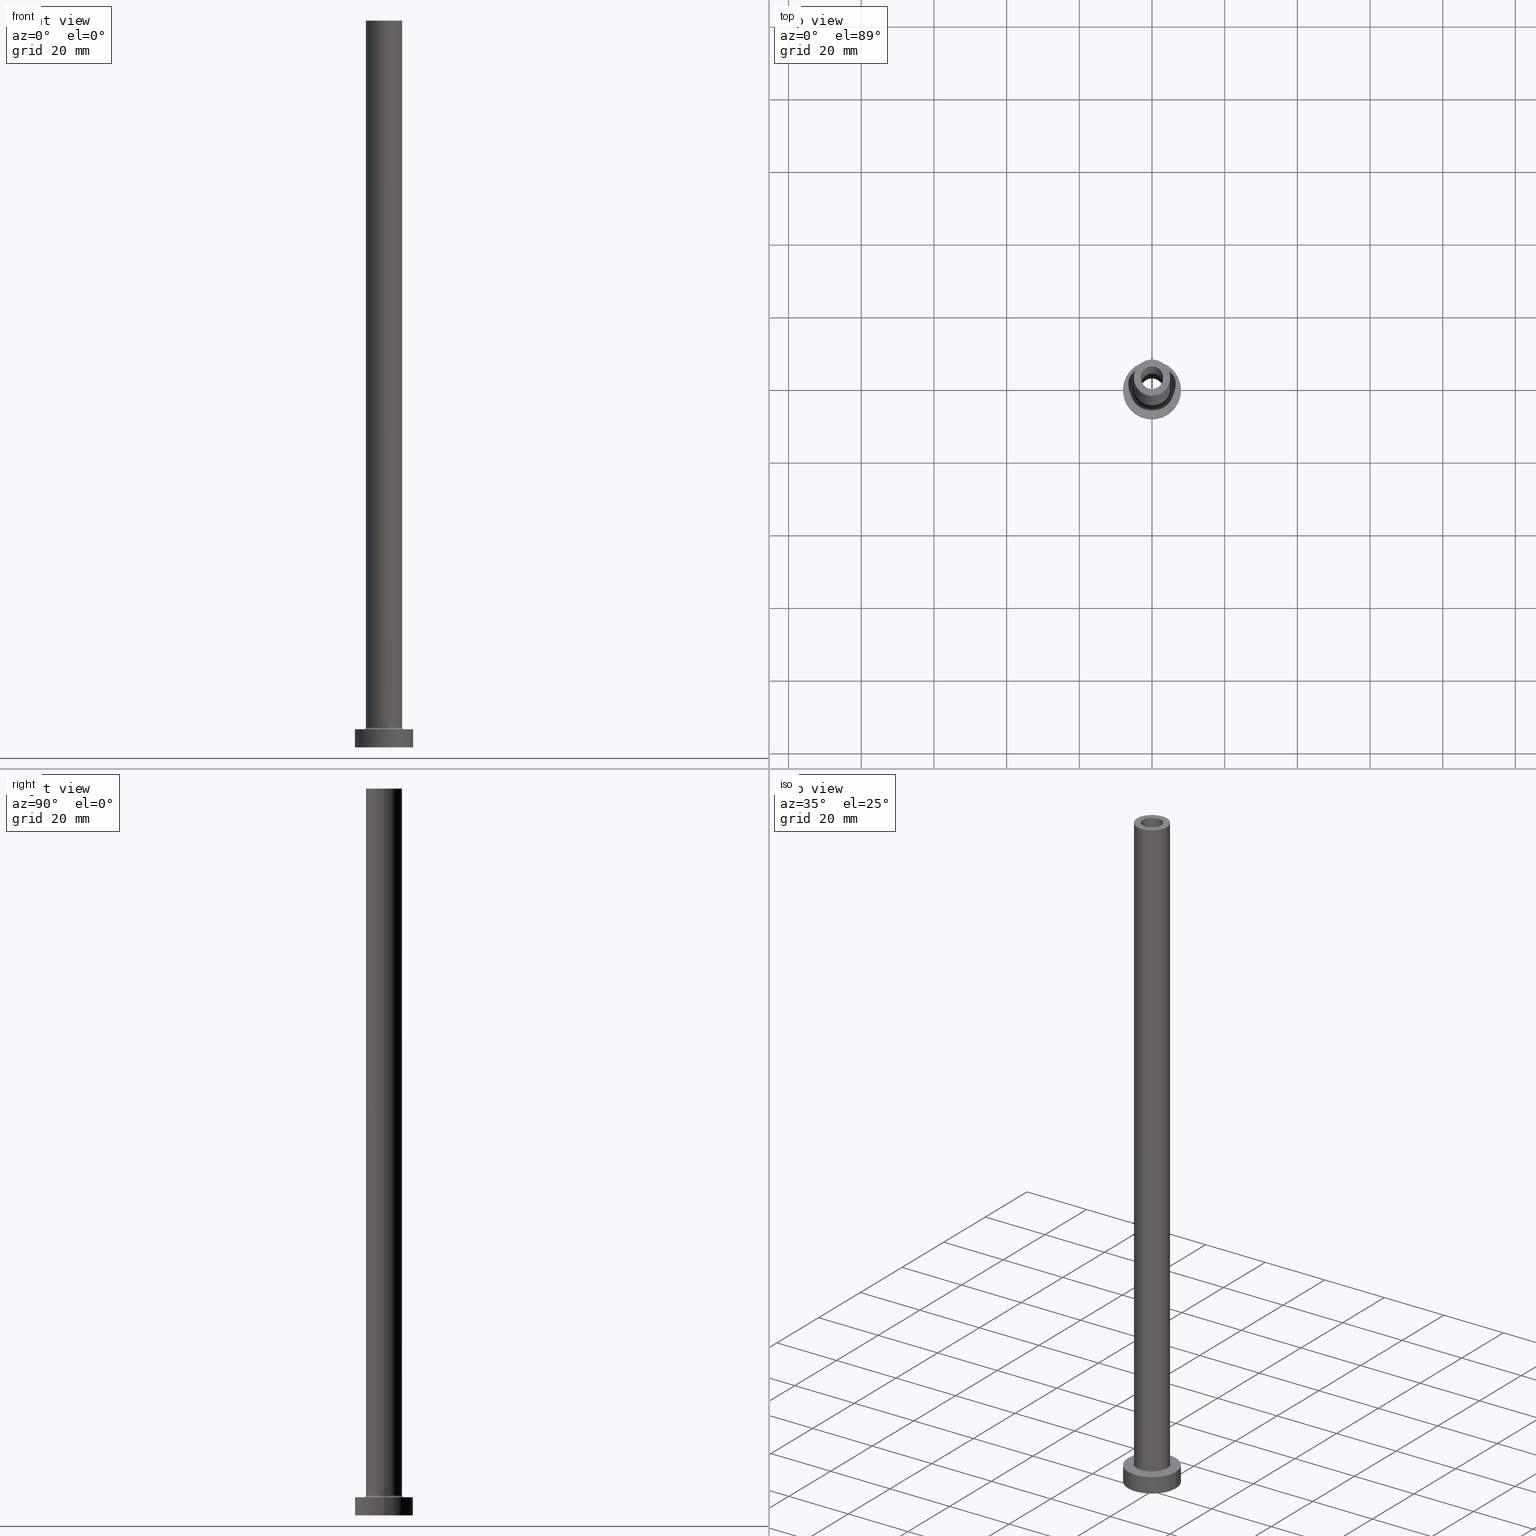
[diagram: canonical four-view strip — front | top / right | iso, engineering-drawing reading convention]
A machine part, canonical four-view strip (front | top / right | iso — engineering-drawing reading convention). The complete STEP part file that produces these views, byte-faithful:
ISO-10303-21;
HEADER;
FILE_DESCRIPTION (( 'STEP AP203' ),
    '1' );
FILE_NAME ('e811.STEP',
    '2023-02-13T09:11:57',
    ( '' ),
    ( '' ),
    'SwSTEP 2.0',
    'SolidWorks 2019',
    '' );
FILE_SCHEMA (( 'CONFIG_CONTROL_DESIGN' ));
ENDSEC;

DATA;
#1 = ORIENTED_EDGE ( 'NONE', *, *, #220, .T. ) ;
#2 = DIRECTION ( 'NONE',  ( 1.000000000000000000, 0.000000000000000000, 0.000000000000000000 ) ) ;
#3 = EDGE_LOOP ( 'NONE', ( #242, #404, #261, #391 ) ) ;
#4 = DIRECTION ( 'NONE',  ( -0.000000000000000000, -0.000000000000000000, -1.000000000000000000 ) ) ;
#5 = ADVANCED_FACE ( 'NONE', ( #263, #415 ), #51, .F. ) ;
#6 = EDGE_LOOP ( 'NONE', ( #119, #329, #144, #199 ) ) ;
#7 = CARTESIAN_POINT ( 'NONE',  ( 3.250000000000000444, 3.980102097228898231E-16, 155.0000000000000284 ) ) ;
#8 = DATE_AND_TIME ( #210, #273 ) ;
#9 = EDGE_LOOP ( 'NONE', ( #290, #429, #296, #249 ) ) ;
#10 = CYLINDRICAL_SURFACE ( 'NONE', #192, 8.000000000000000000 ) ;
#11 = AXIS2_PLACEMENT_3D ( 'NONE', #419, #313, #332 ) ;
#12 = ORIENTED_EDGE ( 'NONE', *, *, #21, .F. ) ;
#13 = ORGANIZATION ( 'NEUR�EN�', 'NEUR�EN�', '' ) ;
#14 = EDGE_CURVE ( 'NONE', #397, #252, #40, .T. ) ;
#15 = CARTESIAN_POINT ( 'NONE',  ( 0.000000000000000000, 0.000000000000000000, 200.0000000000000000 ) ) ;
#16 = CARTESIAN_POINT ( 'NONE',  ( 0.000000000000000000, 0.000000000000000000, 5.000000000000000000 ) ) ;
#17 = DIRECTION ( 'NONE',  ( 0.000000000000000000, 0.000000000000000000, -1.000000000000000000 ) ) ;
#18 = CARTESIAN_POINT ( 'NONE',  ( -8.000000000000000000, 0.000000000000000000, 0.000000000000000000 ) ) ;
#19 = CARTESIAN_POINT ( 'NONE',  ( 3.250000000000000444, 3.980102097228898231E-16, 0.000000000000000000 ) ) ;
#20 = CYLINDRICAL_SURFACE ( 'NONE', #203, 3.250000000000000444 ) ;
#21 = EDGE_CURVE ( 'NONE', #146, #139, #298, .T. ) ;
#22 = DIRECTION ( 'NONE',  ( 0.000000000000000000, 0.000000000000000000, 1.000000000000000000 ) ) ;
#23 = DIRECTION ( 'NONE',  ( 1.000000000000000000, 0.000000000000000000, 0.000000000000000000 ) ) ;
#24 = ORIENTED_EDGE ( 'NONE', *, *, #372, .T. ) ;
#25 =( NAMED_UNIT ( * ) PLANE_ANGLE_UNIT ( ) SI_UNIT ( $, .RADIAN. ) );
#26 = LINE ( 'NONE', #163, #302 ) ;
#27 = COORDINATED_UNIVERSAL_TIME_OFFSET ( 1, 0, .AHEAD. ) ;
#28 = EDGE_CURVE ( 'NONE', #252, #397, #157, .T. ) ;
#29 = CLOSED_SHELL ( 'NONE', ( #170, #336, #408, #456, #186, #260, #105, #424, #393, #39, #200, #357, #5, #179 ) ) ;
#30 = CC_DESIGN_APPROVAL ( #138, ( #352 ) ) ;
#31 = APPLICATION_PROTOCOL_DEFINITION ( 'international standard', 'config_control_design', 1994, #229 ) ;
#32 = CIRCLE ( 'NONE', #176, 8.000000000000000000 ) ;
#33 = AXIS2_PLACEMENT_3D ( 'NONE', #307, #345, #56 ) ;
#34 = ORIENTED_EDGE ( 'NONE', *, *, #28, .F. ) ;
#35 = ORIENTED_EDGE ( 'NONE', *, *, #421, .T. ) ;
#36 = DIRECTION ( 'NONE',  ( -0.000000000000000000, -0.000000000000000000, -1.000000000000000000 ) ) ;
#37 = ORIENTED_EDGE ( 'NONE', *, *, #57, .T. ) ;
#38 = DIRECTION ( 'NONE',  ( 0.000000000000000000, 0.000000000000000000, 1.000000000000000000 ) ) ;
#39 = ADVANCED_FACE ( 'NONE', ( #308, #381 ), #90, .T. ) ;
#40 = CIRCLE ( 'NONE', #123, 5.000000000000000000 ) ;
#41 = LOCAL_TIME ( 10, 11, 57.00000000000000000, #27 ) ;
#42 = EDGE_LOOP ( 'NONE', ( #399, #76, #254, #351 ) ) ;
#43 = CARTESIAN_POINT ( 'NONE',  ( 0.000000000000000000, 0.000000000000000000, 0.000000000000000000 ) ) ;
#44 = ORIENTED_EDGE ( 'NONE', *, *, #21, .T. ) ;
#45 = DIRECTION ( 'NONE',  ( 1.000000000000000000, 0.000000000000000000, 0.000000000000000000 ) ) ;
#46 = COORDINATED_UNIVERSAL_TIME_OFFSET ( 1, 0, .AHEAD. ) ;
#47 = EDGE_CURVE ( 'NONE', #427, #112, #107, .T. ) ;
#48 = ORIENTED_EDGE ( 'NONE', *, *, #94, .F. ) ;
#49 = DIRECTION ( 'NONE',  ( -1.000000000000000000, 0.000000000000000000, 0.000000000000000000 ) ) ;
#50 = AXIS2_PLACEMENT_3D ( 'NONE', #231, #162, #270 ) ;
#51 = PLANE ( 'NONE',  #137 ) ;
#52 = LOCAL_TIME ( 10, 11, 57.00000000000000000, #282 ) ;
#53 = CARTESIAN_POINT ( 'NONE',  ( 0.000000000000000000, 0.000000000000000000, 5.000000000000000000 ) ) ;
#54 = DIRECTION ( 'NONE',  ( -1.000000000000000000, 0.000000000000000000, 0.000000000000000000 ) ) ;
#55 = VERTEX_POINT ( 'NONE', #447 ) ;
#56 = DIRECTION ( 'NONE',  ( 1.000000000000000000, 0.000000000000000000, 0.000000000000000000 ) ) ;
#57 = EDGE_CURVE ( 'NONE', #112, #216, #212, .T. ) ;
#58 = DIRECTION ( 'NONE',  ( -0.000000000000000000, -0.000000000000000000, -1.000000000000000000 ) ) ;
#59 = CIRCLE ( 'NONE', #445, 3.250000000000000444 ) ;
#60 = CARTESIAN_POINT ( 'NONE',  ( 3.100000000000000089, 3.796405077356793932E-16, 200.0000000000000000 ) ) ;
#61 = CC_DESIGN_APPROVAL ( #147, ( #340 ) ) ;
#62 = DIRECTION ( 'NONE',  ( 0.000000000000000000, -1.000000000000000000, 0.000000000000000000 ) ) ;
#63 = DIRECTION ( 'NONE',  ( 0.000000000000000000, 0.000000000000000000, 1.000000000000000000 ) ) ;
#64 = EDGE_CURVE ( 'NONE', #146, #278, #387, .T. ) ;
#65 = CARTESIAN_POINT ( 'NONE',  ( -3.250000000000000444, 0.000000000000000000, 0.000000000000000000 ) ) ;
#66 = APPROVAL_STATUS ( 'not_yet_approved' ) ;
#67 = PRODUCT_DEFINITION_SHAPE ( 'NONE', 'NONE',  #352 ) ;
#68 = EDGE_LOOP ( 'NONE', ( #37, #78 ) ) ;
#69 = AXIS2_PLACEMENT_3D ( 'NONE', #209, #172, #321 ) ;
#70 = PRODUCT ( 'e811', 'e811', '', ( #244 ) ) ;
#71 = VECTOR ( 'NONE', #344, 1000.000000000000000 ) ;
#72 = EDGE_LOOP ( 'NONE', ( #182, #438 ) ) ;
#73 = DIRECTION ( 'NONE',  ( -1.000000000000000000, 0.000000000000000000, 0.000000000000000000 ) ) ;
#74 = EDGE_CURVE ( 'NONE', #386, #367, #175, .T. ) ;
#75 = APPROVAL_DATE_TIME ( #314, #403 ) ;
#76 = ORIENTED_EDGE ( 'NONE', *, *, #440, .F. ) ;
#77 = CYLINDRICAL_SURFACE ( 'NONE', #355, 8.000000000000000000 ) ;
#78 = ORIENTED_EDGE ( 'NONE', *, *, #211, .T. ) ;
#79 = FACE_OUTER_BOUND ( 'NONE', #3, .T. ) ;
#80 = VECTOR ( 'NONE', #58, 1000.000000000000000 ) ;
#81 =( GEOMETRIC_REPRESENTATION_CONTEXT ( 3 ) GLOBAL_UNCERTAINTY_ASSIGNED_CONTEXT ( ( #316 ) ) GLOBAL_UNIT_ASSIGNED_CONTEXT ( ( #271, #25, #262 ) ) REPRESENTATION_CONTEXT ( 'NONE', 'WORKASPACE' ) );
#82 = EDGE_LOOP ( 'NONE', ( #85, #358 ) ) ;
#83 = CARTESIAN_POINT ( 'NONE',  ( 0.000000000000000000, 0.000000000000000000, 5.000000000000000000 ) ) ;
#84 = PERSON_AND_ORGANIZATION ( #134, #13 ) ;
#85 = ORIENTED_EDGE ( 'NONE', *, *, #64, .F. ) ;
#86 = CARTESIAN_POINT ( 'NONE',  ( 0.000000000000000000, 0.000000000000000000, 164.1923881554251352 ) ) ;
#87 = FACE_OUTER_BOUND ( 'NONE', #315, .T. ) ;
#88 = CC_DESIGN_PERSON_AND_ORGANIZATION_ASSIGNMENT ( #243, #390, ( #91 ) ) ;
#89 = AXIS2_PLACEMENT_3D ( 'NONE', #341, #22, #455 ) ;
#90 = PLANE ( 'NONE',  #312 ) ;
#91 = PRODUCT_DEFINITION_FORMATION_WITH_SPECIFIED_SOURCE ( 'LIBOVOLN�', '', #70, .NOT_KNOWN. ) ;
#92 = CARTESIAN_POINT ( 'NONE',  ( 8.000000000000000000, 9.797174393178825657E-16, 5.000000000000000000 ) ) ;
#93 = DIRECTION ( 'NONE',  ( 0.000000000000000000, 0.000000000000000000, 1.000000000000000000 ) ) ;
#94 = EDGE_CURVE ( 'NONE', #278, #121, #131, .T. ) ;
#95 = CYLINDRICAL_SURFACE ( 'NONE', #214, 5.000000000000000000 ) ;
#96 = LINE ( 'NONE', #193, #402 ) ;
#97 = CARTESIAN_POINT ( 'NONE',  ( 5.500000000000000000, 0.000000000000000000, 5.500000000000005329 ) ) ;
#98 = AXIS2_PLACEMENT_3D ( 'NONE', #15, #208, #73 ) ;
#99 = VECTOR ( 'NONE', #368, 1000.000000000000000 ) ;
#100 = EDGE_CURVE ( 'NONE', #386, #371, #96, .T. ) ;
#101 = CARTESIAN_POINT ( 'NONE',  ( 8.000000000000000000, 9.797174393178825657E-16, 5.000000000000000000 ) ) ;
#102 = EDGE_LOOP ( 'NONE', ( #283, #356, #173, #12 ) ) ;
#103 = PERSON_AND_ORGANIZATION_ROLE ( 'design_owner' ) ;
#104 = AXIS2_PLACEMENT_3D ( 'NONE', #377, #156, #450 ) ;
#105 = ADVANCED_FACE ( 'NONE', ( #376, #87 ), #221, .T. ) ;
#106 = COORDINATED_UNIVERSAL_TIME_OFFSET ( 1, 0, .AHEAD. ) ;
#107 = CIRCLE ( 'NONE', #239, 0.5000000000000004441 ) ;
#108 = AXIS2_PLACEMENT_3D ( 'NONE', #183, #222, #23 ) ;
#109 = EDGE_CURVE ( 'NONE', #306, #371, #224, .T. ) ;
#110 = ORIENTED_EDGE ( 'NONE', *, *, #293, .T. ) ;
#111 = FACE_OUTER_BOUND ( 'NONE', #42, .T. ) ;
#112 = VERTEX_POINT ( 'NONE', #412 ) ;
#113 = FACE_OUTER_BOUND ( 'NONE', #292, .T. ) ;
#114 = ORIENTED_EDGE ( 'NONE', *, *, #421, .F. ) ;
#115 = DIRECTION ( 'NONE',  ( 0.000000000000000000, 0.000000000000000000, -1.000000000000000000 ) ) ;
#116 = TOROIDAL_SURFACE ( 'NONE', #225, 5.500000000000000000, 0.5000000000000000000 ) ;
#117 = ORIENTED_EDGE ( 'NONE', *, *, #74, .F. ) ;
#118 = FACE_OUTER_BOUND ( 'NONE', #102, .T. ) ;
#119 = ORIENTED_EDGE ( 'NONE', *, *, #14, .F. ) ;
#120 = DATE_AND_TIME ( #213, #317 ) ;
#121 = VERTEX_POINT ( 'NONE', #19 ) ;
#122 = EDGE_CURVE ( 'NONE', #55, #360, #304, .T. ) ;
#123 = AXIS2_PLACEMENT_3D ( 'NONE', #128, #406, #409 ) ;
#124 = DIRECTION ( 'NONE',  ( 1.000000000000000000, 0.000000000000000000, 0.000000000000000000 ) ) ;
#125 = CARTESIAN_POINT ( 'NONE',  ( 0.000000000000000000, 0.000000000000000000, 5.000000000000000000 ) ) ;
#126 = DIRECTION ( 'NONE',  ( 1.000000000000000000, 0.000000000000000000, 0.000000000000000000 ) ) ;
#127 = CARTESIAN_POINT ( 'NONE',  ( 0.000000000000000000, 0.000000000000000000, 200.0000000000000000 ) ) ;
#128 = CARTESIAN_POINT ( 'NONE',  ( 0.000000000000000000, 0.000000000000000000, 200.0000000000000000 ) ) ;
#129 = DIRECTION ( 'NONE',  ( -0.000000000000000000, -0.000000000000000000, -1.000000000000000000 ) ) ;
#130 = EDGE_CURVE ( 'NONE', #360, #142, #284, .T. ) ;
#131 = LINE ( 'NONE', #153, #71 ) ;
#132 = AXIS2_PLACEMENT_3D ( 'NONE', #217, #365, #45 ) ;
#133 = APPROVAL_DATE_TIME ( #423, #138 ) ;
#134 = PERSON ( 'NEUR�EN�', 'NEUR�EN�', 'NEUR�EN�', ('NEUR�EN�'), ('NEUR�EN�'), ('NEUR�EN�') ) ;
#135 = ORIENTED_EDGE ( 'NONE', *, *, #166, .T. ) ;
#136 = EDGE_CURVE ( 'NONE', #397, #427, #26, .T. ) ;
#137 = AXIS2_PLACEMENT_3D ( 'NONE', #449, #234, #374 ) ;
#138 = APPROVAL ( #353, 'NEUR�EN�' ) ;
#139 = VERTEX_POINT ( 'NONE', #65 ) ;
#140 = DIRECTION ( 'NONE',  ( 0.000000000000000000, 0.000000000000000000, 1.000000000000000000 ) ) ;
#141 = CIRCLE ( 'NONE', #454, 3.100000000000000089 ) ;
#142 = VERTEX_POINT ( 'NONE', #197 ) ;
#143 = DIRECTION ( 'NONE',  ( -0.000000000000000000, -0.000000000000000000, -1.000000000000000000 ) ) ;
#144 = ORIENTED_EDGE ( 'NONE', *, *, #237, .T. ) ;
#145 = CARTESIAN_POINT ( 'NONE',  ( -5.000000000000000000, 0.000000000000000000, 200.0000000000000000 ) ) ;
#146 = VERTEX_POINT ( 'NONE', #383 ) ;
#147 = APPROVAL ( #411, 'NEUR�EN�' ) ;
#148 = DIRECTION ( 'NONE',  ( 1.000000000000000000, 0.000000000000000000, 0.000000000000000000 ) ) ;
#149 = APPROVAL_PERSON_ORGANIZATION ( #392, #403, #198 ) ;
#150 = PERSON_AND_ORGANIZATION_ROLE ( 'creator' ) ;
#151 = ORIENTED_EDGE ( 'NONE', *, *, #109, .T. ) ;
#152 = FACE_OUTER_BOUND ( 'NONE', #461, .T. ) ;
#153 = CARTESIAN_POINT ( 'NONE',  ( 3.250000000000000444, 3.980102097228898231E-16, 164.1923881554251352 ) ) ;
#154 = EDGE_CURVE ( 'NONE', #369, #142, #274, .T. ) ;
#155 = DIRECTION ( 'NONE',  ( 1.000000000000000000, 0.000000000000000000, -0.000000000000000000 ) ) ;
#156 = DIRECTION ( 'NONE',  ( 0.000000000000000000, 0.000000000000000000, 1.000000000000000000 ) ) ;
#157 = CIRCLE ( 'NONE', #50, 5.000000000000000000 ) ;
#158 = DIRECTION ( 'NONE',  ( 1.000000000000000000, 0.000000000000000000, 0.000000000000000000 ) ) ;
#159 = CARTESIAN_POINT ( 'NONE',  ( 5.000000000000000000, 6.123233995736766282E-16, 5.500000000000005329 ) ) ;
#160 = DIRECTION ( 'NONE',  ( 0.000000000000000000, 0.000000000000000000, -1.000000000000000000 ) ) ;
#161 = DIRECTION ( 'NONE',  ( -1.000000000000000000, 0.000000000000000000, 0.000000000000000000 ) ) ;
#162 = DIRECTION ( 'NONE',  ( 0.000000000000000000, 0.000000000000000000, 1.000000000000000000 ) ) ;
#163 = CARTESIAN_POINT ( 'NONE',  ( 5.000000000000000000, 6.123233995736766282E-16, 200.0000000000000000 ) ) ;
#164 = CIRCLE ( 'NONE', #108, 3.250000000000000444 ) ;
#165 = CALENDAR_DATE ( 2023, 13, 2 ) ;
#166 = EDGE_CURVE ( 'NONE', #246, #216, #325, .T. ) ;
#167 = PERSON_AND_ORGANIZATION ( #134, #13 ) ;
#168 = AXIS2_PLACEMENT_3D ( 'NONE', #53, #187, #300 ) ;
#169 = AXIS2_PLACEMENT_3D ( 'NONE', #264, #275, #420 ) ;
#170 = ADVANCED_FACE ( 'NONE', ( #79 ), #286, .F. ) ;
#171 = ORIENTED_EDGE ( 'NONE', *, *, #154, .T. ) ;
#172 = DIRECTION ( 'NONE',  ( 0.000000000000000000, 0.000000000000000000, 1.000000000000000000 ) ) ;
#173 = ORIENTED_EDGE ( 'NONE', *, *, #201, .T. ) ;
#174 = CARTESIAN_POINT ( 'NONE',  ( -5.500000000000000000, 6.735557395310442023E-16, 5.000000000000002665 ) ) ;
#175 = CIRCLE ( 'NONE', #426, 3.100000000000000089 ) ;
#176 = AXIS2_PLACEMENT_3D ( 'NONE', #437, #38, #326 ) ;
#177 = ORIENTED_EDGE ( 'NONE', *, *, #310, .T. ) ;
#178 = LINE ( 'NONE', #259, #452 ) ;
#179 = ADVANCED_FACE ( 'NONE', ( #113 ), #206, .F. ) ;
#180 = ORIENTED_EDGE ( 'NONE', *, *, #122, .F. ) ;
#181 = CARTESIAN_POINT ( 'NONE',  ( 0.000000000000000000, 0.000000000000000000, 200.0000000000000000 ) ) ;
#182 = ORIENTED_EDGE ( 'NONE', *, *, #130, .F. ) ;
#183 = CARTESIAN_POINT ( 'NONE',  ( 0.000000000000000000, 0.000000000000000000, 0.000000000000000000 ) ) ;
#184 = AXIS2_PLACEMENT_3D ( 'NONE', #83, #143, #2 ) ;
#185 = CARTESIAN_POINT ( 'NONE',  ( 0.000000000000000000, 0.000000000000000000, 200.0000000000000000 ) ) ;
#186 = ADVANCED_FACE ( 'NONE', ( #152 ), #10, .T. ) ;
#187 = DIRECTION ( 'NONE',  ( 0.000000000000000000, 0.000000000000000000, 1.000000000000000000 ) ) ;
#188 = CARTESIAN_POINT ( 'NONE',  ( 5.000000000000000000, 6.123233995736766282E-16, 200.0000000000000000 ) ) ;
#189 = DIRECTION ( 'NONE',  ( 0.000000000000000000, 0.000000000000000000, 1.000000000000000000 ) ) ;
#190 = FACE_BOUND ( 'NONE', #435, .T. ) ;
#191 = AXIS2_PLACEMENT_3D ( 'NONE', #248, #328, #430 ) ;
#192 = AXIS2_PLACEMENT_3D ( 'NONE', #359, #36, #361 ) ;
#193 = CARTESIAN_POINT ( 'NONE',  ( 3.100000000000000089, 3.796405077356793932E-16, 200.0000000000000000 ) ) ;
#194 = MANIFOLD_SOLID_BREP ( 'Odebrat vysunut�m4', #29 ) ;
#195 = CYLINDRICAL_SURFACE ( 'NONE', #379, 5.000000000000000000 ) ;
#196 = CARTESIAN_POINT ( 'NONE',  ( 0.000000000000000000, 0.000000000000000000, 200.0000000000000000 ) ) ;
#197 = CARTESIAN_POINT ( 'NONE',  ( 8.000000000000000000, 9.797174393178825657E-16, 0.000000000000000000 ) ) ;
#198 = APPROVAL_ROLE ( '' ) ;
#199 = ORIENTED_EDGE ( 'NONE', *, *, #293, .F. ) ;
#200 = ADVANCED_FACE ( 'NONE', ( #439 ), #416, .F. ) ;
#201 = EDGE_CURVE ( 'NONE', #121, #139, #59, .T. ) ;
#202 = ORIENTED_EDGE ( 'NONE', *, *, #14, .T. ) ;
#203 = AXIS2_PLACEMENT_3D ( 'NONE', #410, #413, #161 ) ;
#204 = CC_DESIGN_DATE_AND_TIME_ASSIGNMENT ( #8, #401, ( #340 ) ) ;
#205 = ORIENTED_EDGE ( 'NONE', *, *, #251, .F. ) ;
#206 = CYLINDRICAL_SURFACE ( 'NONE', #378, 3.100000000000000089 ) ;
#207 = ORIENTED_EDGE ( 'NONE', *, *, #57, .F. ) ;
#208 = DIRECTION ( 'NONE',  ( 0.000000000000000000, 0.000000000000000000, -1.000000000000000000 ) ) ;
#209 = CARTESIAN_POINT ( 'NONE',  ( 0.000000000000000000, 0.000000000000000000, 5.500000000000005329 ) ) ;
#210 = CALENDAR_DATE ( 2023, 13, 2 ) ;
#211 = EDGE_CURVE ( 'NONE', #216, #112, #394, .T. ) ;
#212 = CIRCLE ( 'NONE', #459, 5.500000000000000000 ) ;
#213 = CALENDAR_DATE ( 2023, 13, 2 ) ;
#214 = AXIS2_PLACEMENT_3D ( 'NONE', #230, #299, #54 ) ;
#215 = PERSON_AND_ORGANIZATION ( #134, #13 ) ;
#216 = VERTEX_POINT ( 'NONE', #174 ) ;
#217 = CARTESIAN_POINT ( 'NONE',  ( 0.000000000000000000, 0.000000000000000000, 0.000000000000000000 ) ) ;
#218 = ORIENTED_EDGE ( 'NONE', *, *, #201, .F. ) ;
#219 = DIRECTION ( 'NONE',  ( 0.000000000000000000, 0.000000000000000000, -1.000000000000000000 ) ) ;
#220 = EDGE_CURVE ( 'NONE', #367, #306, #178, .T. ) ;
#221 = PLANE ( 'NONE',  #168 ) ;
#222 = DIRECTION ( 'NONE',  ( -0.000000000000000000, -0.000000000000000000, -1.000000000000000000 ) ) ;
#223 = SHAPE_DEFINITION_REPRESENTATION ( #67, #323 ) ;
#224 = CIRCLE ( 'NONE', #265, 3.100000000000000089 ) ;
#225 = AXIS2_PLACEMENT_3D ( 'NONE', #338, #382, #301 ) ;
#226 = DIRECTION ( 'NONE',  ( 0.000000000000000000, 0.000000000000000000, 1.000000000000000000 ) ) ;
#227 = FACE_OUTER_BOUND ( 'NONE', #333, .T. ) ;
#228 = DIRECTION ( 'NONE',  ( 0.000000000000000000, 0.000000000000000000, -1.000000000000000000 ) ) ;
#229 = APPLICATION_CONTEXT ( 'configuration controlled 3d designs of mechanical parts and assemblies' ) ;
#230 = CARTESIAN_POINT ( 'NONE',  ( 0.000000000000000000, 0.000000000000000000, 200.0000000000000000 ) ) ;
#231 = CARTESIAN_POINT ( 'NONE',  ( 0.000000000000000000, 0.000000000000000000, 200.0000000000000000 ) ) ;
#232 = PLANE ( 'NONE',  #104 ) ;
#233 = CIRCLE ( 'NONE', #33, 5.000000000000000000 ) ;
#234 = DIRECTION ( 'NONE',  ( 0.000000000000000000, 0.000000000000000000, 1.000000000000000000 ) ) ;
#235 = DIRECTION ( 'NONE',  ( 1.000000000000000000, 0.000000000000000000, 0.000000000000000000 ) ) ;
#236 = DIRECTION ( 'NONE',  ( -0.000000000000000000, -0.000000000000000000, -1.000000000000000000 ) ) ;
#237 = EDGE_CURVE ( 'NONE', #427, #246, #279, .T. ) ;
#238 = ORIENTED_EDGE ( 'NONE', *, *, #47, .F. ) ;
#239 = AXIS2_PLACEMENT_3D ( 'NONE', #97, #62, #228 ) ;
#240 = CIRCLE ( 'NONE', #280, 3.250000000000000444 ) ;
#241 = CALENDAR_DATE ( 2023, 13, 2 ) ;
#242 = ORIENTED_EDGE ( 'NONE', *, *, #251, .T. ) ;
#243 = PERSON_AND_ORGANIZATION ( #134, #13 ) ;
#244 = MECHANICAL_CONTEXT ( 'NONE', #256, 'mechanical' ) ;
#245 = DATE_AND_TIME ( #347, #257 ) ;
#246 = VERTEX_POINT ( 'NONE', #330 ) ;
#247 = AXIS2_PLACEMENT_3D ( 'NONE', #125, #63, #305 ) ;
#248 = CARTESIAN_POINT ( 'NONE',  ( 0.000000000000000000, 0.000000000000000000, 5.500000000000005329 ) ) ;
#249 = ORIENTED_EDGE ( 'NONE', *, *, #211, .F. ) ;
#250 = DIRECTION ( 'NONE',  ( -0.000000000000000000, -0.000000000000000000, -1.000000000000000000 ) ) ;
#251 = EDGE_CURVE ( 'NONE', #367, #386, #434, .T. ) ;
#252 = VERTEX_POINT ( 'NONE', #253 ) ;
#253 = CARTESIAN_POINT ( 'NONE',  ( -5.000000000000000000, 0.000000000000000000, 200.0000000000000000 ) ) ;
#254 = ORIENTED_EDGE ( 'NONE', *, *, #122, .T. ) ;
#255 = CARTESIAN_POINT ( 'NONE',  ( -3.100000000000000089, 0.000000000000000000, 155.0000000000000284 ) ) ;
#256 = APPLICATION_CONTEXT ( 'configuration controlled 3d designs of mechanical parts and assemblies' ) ;
#257 = LOCAL_TIME ( 10, 11, 57.00000000000000000, #106 ) ;
#258 = ORIENTED_EDGE ( 'NONE', *, *, #28, .T. ) ;
#259 = CARTESIAN_POINT ( 'NONE',  ( -3.100000000000000089, 0.000000000000000000, 200.0000000000000000 ) ) ;
#260 = ADVANCED_FACE ( 'NONE', ( #111 ), #77, .T. ) ;
#261 = ORIENTED_EDGE ( 'NONE', *, *, #109, .F. ) ;
#262 =( NAMED_UNIT ( * ) SI_UNIT ( $, .STERADIAN. ) SOLID_ANGLE_UNIT ( ) );
#263 = FACE_BOUND ( 'NONE', #354, .T. ) ;
#264 = CARTESIAN_POINT ( 'NONE',  ( 0.000000000000000000, 0.000000000000000000, 0.000000000000000000 ) ) ;
#265 = AXIS2_PLACEMENT_3D ( 'NONE', #414, #444, #124 ) ;
#266 = ORIENTED_EDGE ( 'NONE', *, *, #100, .F. ) ;
#267 = CARTESIAN_POINT ( 'NONE',  ( -8.000000000000000000, 0.000000000000000000, 5.000000000000000000 ) ) ;
#268 = CC_DESIGN_DATE_AND_TIME_ASSIGNMENT ( #245, #385, ( #352 ) ) ;
#269 = DIRECTION ( 'NONE',  ( -1.000000000000000000, 0.000000000000000000, 0.000000000000000000 ) ) ;
#270 = DIRECTION ( 'NONE',  ( 1.000000000000000000, 0.000000000000000000, 0.000000000000000000 ) ) ;
#271 =( LENGTH_UNIT ( ) NAMED_UNIT ( * ) SI_UNIT ( .MILLI., .METRE. ) );
#272 = VECTOR ( 'NONE', #346, 1000.000000000000000 ) ;
#273 = LOCAL_TIME ( 10, 11, 57.00000000000000000, #349 ) ;
#274 = LINE ( 'NONE', #101, #272 ) ;
#275 = DIRECTION ( 'NONE',  ( 0.000000000000000000, 0.000000000000000000, 1.000000000000000000 ) ) ;
#276 = EDGE_CURVE ( 'NONE', #369, #55, #32, .T. ) ;
#277 = PERSON_AND_ORGANIZATION ( #134, #13 ) ;
#278 = VERTEX_POINT ( 'NONE', #7 ) ;
#279 = CIRCLE ( 'NONE', #191, 5.000000000000000000 ) ;
#280 = AXIS2_PLACEMENT_3D ( 'NONE', #309, #446, #235 ) ;
#281 = APPROVAL_ROLE ( '' ) ;
#282 = COORDINATED_UNIVERSAL_TIME_OFFSET ( 1, 0, .AHEAD. ) ;
#283 = ORIENTED_EDGE ( 'NONE', *, *, #64, .T. ) ;
#284 = CIRCLE ( 'NONE', #89, 8.000000000000000000 ) ;
#285 = CC_DESIGN_APPROVAL ( #403, ( #91 ) ) ;
#286 = CYLINDRICAL_SURFACE ( 'NONE', #98, 3.100000000000000089 ) ;
#287 = EDGE_CURVE ( 'NONE', #371, #306, #141, .T. ) ;
#288 = EDGE_LOOP ( 'NONE', ( #205, #117 ) ) ;
#289 = CARTESIAN_POINT ( 'NONE',  ( 0.000000000000000000, 0.000000000000000000, 155.0000000000000284 ) ) ;
#290 = ORIENTED_EDGE ( 'NONE', *, *, #166, .F. ) ;
#291 = DIRECTION ( 'NONE',  ( 1.000000000000000000, 0.000000000000000000, 0.000000000000000000 ) ) ;
#292 = EDGE_LOOP ( 'NONE', ( #266, #395, #1, #432 ) ) ;
#293 = EDGE_CURVE ( 'NONE', #252, #246, #433, .T. ) ;
#294 = CARTESIAN_POINT ( 'NONE',  ( 0.000000000000000000, 0.000000000000000000, 200.0000000000000000 ) ) ;
#295 = CIRCLE ( 'NONE', #132, 8.000000000000000000 ) ;
#296 = ORIENTED_EDGE ( 'NONE', *, *, #47, .T. ) ;
#297 = DIRECTION ( 'NONE',  ( 0.000000000000000000, 0.000000000000000000, -1.000000000000000000 ) ) ;
#298 = LINE ( 'NONE', #442, #339 ) ;
#299 = DIRECTION ( 'NONE',  ( -0.000000000000000000, -0.000000000000000000, -1.000000000000000000 ) ) ;
#300 = DIRECTION ( 'NONE',  ( 1.000000000000000000, 0.000000000000000000, -0.000000000000000000 ) ) ;
#301 = DIRECTION ( 'NONE',  ( 1.000000000000000000, 0.000000000000000000, 0.000000000000000000 ) ) ;
#302 = VECTOR ( 'NONE', #236, 1000.000000000000000 ) ;
#303 = APPROVAL_PERSON_ORGANIZATION ( #167, #138, #281 ) ;
#304 = LINE ( 'NONE', #267, #80 ) ;
#305 = DIRECTION ( 'NONE',  ( 1.000000000000000000, 0.000000000000000000, 0.000000000000000000 ) ) ;
#306 = VERTEX_POINT ( 'NONE', #255 ) ;
#307 = CARTESIAN_POINT ( 'NONE',  ( 0.000000000000000000, 0.000000000000000000, 5.500000000000005329 ) ) ;
#308 = FACE_BOUND ( 'NONE', #288, .T. ) ;
#309 = CARTESIAN_POINT ( 'NONE',  ( 0.000000000000000000, 0.000000000000000000, 155.0000000000000284 ) ) ;
#310 = EDGE_CURVE ( 'NONE', #142, #360, #295, .T. ) ;
#311 = PERSON_AND_ORGANIZATION ( #134, #13 ) ;
#312 = AXIS2_PLACEMENT_3D ( 'NONE', #185, #189, #155 ) ;
#313 = DIRECTION ( 'NONE',  ( 1.224646799147353207E-16, 1.000000000000000000, -0.000000000000000000 ) ) ;
#314 = DATE_AND_TIME ( #165, #41 ) ;
#315 = EDGE_LOOP ( 'NONE', ( #389, #425 ) ) ;
#316 = UNCERTAINTY_MEASURE_WITH_UNIT (LENGTH_MEASURE( 1.000000000000000082E-05 ), #271, 'distance_accuracy_value', 'NONE');
#317 = LOCAL_TIME ( 10, 11, 57.00000000000000000, #46 ) ;
#318 = DESIGN_CONTEXT ( 'detailed design', #229, 'design' ) ;
#319 = SECURITY_CLASSIFICATION_LEVEL ( 'unclassified' ) ;
#320 = ORIENTED_EDGE ( 'NONE', *, *, #287, .T. ) ;
#321 = DIRECTION ( 'NONE',  ( 1.000000000000000000, 0.000000000000000000, 0.000000000000000000 ) ) ;
#322 = CC_DESIGN_PERSON_AND_ORGANIZATION_ASSIGNMENT ( #384, #388, ( #352 ) ) ;
#323 = ADVANCED_BREP_SHAPE_REPRESENTATION ( 'e811', ( #194, #169 ), #81 ) ;
#324 = ORIENTED_EDGE ( 'NONE', *, *, #343, .F. ) ;
#325 = CIRCLE ( 'NONE', #11, 0.5000000000000004441 ) ;
#326 = DIRECTION ( 'NONE',  ( 1.000000000000000000, 0.000000000000000000, 0.000000000000000000 ) ) ;
#327 = EDGE_LOOP ( 'NONE', ( #114, #135, #207, #238 ) ) ;
#328 = DIRECTION ( 'NONE',  ( 0.000000000000000000, 0.000000000000000000, 1.000000000000000000 ) ) ;
#329 = ORIENTED_EDGE ( 'NONE', *, *, #136, .T. ) ;
#330 = CARTESIAN_POINT ( 'NONE',  ( -5.000000000000000000, 0.000000000000000000, 5.500000000000005329 ) ) ;
#331 = EDGE_LOOP ( 'NONE', ( #258, #202 ) ) ;
#332 = DIRECTION ( 'NONE',  ( -1.000000000000000000, 1.224646799147351482E-16, 0.000000000000000000 ) ) ;
#333 = EDGE_LOOP ( 'NONE', ( #364, #34, #110, #35 ) ) ;
#334 = DIRECTION ( 'NONE',  ( -0.000000000000000000, -0.000000000000000000, -1.000000000000000000 ) ) ;
#335 = FACE_OUTER_BOUND ( 'NONE', #72, .T. ) ;
#336 = ADVANCED_FACE ( 'NONE', ( #118 ), #405, .F. ) ;
#337 = DIRECTION ( 'NONE',  ( 1.000000000000000000, 0.000000000000000000, 0.000000000000000000 ) ) ;
#338 = CARTESIAN_POINT ( 'NONE',  ( 0.000000000000000000, 0.000000000000000000, 5.500000000000005329 ) ) ;
#339 = VECTOR ( 'NONE', #160, 1000.000000000000000 ) ;
#340 = SECURITY_CLASSIFICATION ( '', '', #319 ) ;
#341 = CARTESIAN_POINT ( 'NONE',  ( 0.000000000000000000, 0.000000000000000000, 0.000000000000000000 ) ) ;
#342 = FACE_OUTER_BOUND ( 'NONE', #327, .T. ) ;
#343 = EDGE_CURVE ( 'NONE', #139, #121, #164, .T. ) ;
#344 = DIRECTION ( 'NONE',  ( 0.000000000000000000, 0.000000000000000000, -1.000000000000000000 ) ) ;
#345 = DIRECTION ( 'NONE',  ( 0.000000000000000000, 0.000000000000000000, 1.000000000000000000 ) ) ;
#346 = DIRECTION ( 'NONE',  ( -0.000000000000000000, -0.000000000000000000, -1.000000000000000000 ) ) ;
#347 = CALENDAR_DATE ( 2023, 13, 2 ) ;
#348 = ORIENTED_EDGE ( 'NONE', *, *, #343, .T. ) ;
#349 = COORDINATED_UNIVERSAL_TIME_OFFSET ( 1, 0, .AHEAD. ) ;
#350 = CC_DESIGN_SECURITY_CLASSIFICATION ( #340, ( #91 ) ) ;
#351 = ORIENTED_EDGE ( 'NONE', *, *, #130, .T. ) ;
#352 = PRODUCT_DEFINITION ( 'NEZN�M�', '', #91, #318 ) ;
#353 = APPROVAL_STATUS ( 'not_yet_approved' ) ;
#354 = EDGE_LOOP ( 'NONE', ( #151, #320 ) ) ;
#355 = AXIS2_PLACEMENT_3D ( 'NONE', #396, #250, #398 ) ;
#356 = ORIENTED_EDGE ( 'NONE', *, *, #94, .T. ) ;
#357 = ADVANCED_FACE ( 'NONE', ( #375 ), #20, .F. ) ;
#358 = ORIENTED_EDGE ( 'NONE', *, *, #372, .F. ) ;
#359 = CARTESIAN_POINT ( 'NONE',  ( 0.000000000000000000, 0.000000000000000000, 5.000000000000000000 ) ) ;
#360 = VERTEX_POINT ( 'NONE', #18 ) ;
#361 = DIRECTION ( 'NONE',  ( -1.000000000000000000, 0.000000000000000000, 0.000000000000000000 ) ) ;
#362 = EDGE_LOOP ( 'NONE', ( #48, #24, #44, #348 ) ) ;
#363 = DIRECTION ( 'NONE',  ( 0.000000000000000000, 0.000000000000000000, 1.000000000000000000 ) ) ;
#364 = ORIENTED_EDGE ( 'NONE', *, *, #136, .F. ) ;
#365 = DIRECTION ( 'NONE',  ( 0.000000000000000000, 0.000000000000000000, 1.000000000000000000 ) ) ;
#366 = PRODUCT_RELATED_PRODUCT_CATEGORY ( 'detail', '', ( #70 ) ) ;
#367 = VERTEX_POINT ( 'NONE', #407 ) ;
#368 = DIRECTION ( 'NONE',  ( -0.000000000000000000, -0.000000000000000000, -1.000000000000000000 ) ) ;
#369 = VERTEX_POINT ( 'NONE', #92 ) ;
#370 = APPROVAL_DATE_TIME ( #120, #147 ) ;
#371 = VERTEX_POINT ( 'NONE', #373 ) ;
#372 = EDGE_CURVE ( 'NONE', #278, #146, #240, .T. ) ;
#373 = CARTESIAN_POINT ( 'NONE',  ( 3.100000000000000089, 3.796405077356793932E-16, 155.0000000000000284 ) ) ;
#374 = DIRECTION ( 'NONE',  ( 1.000000000000000000, 0.000000000000000000, -0.000000000000000000 ) ) ;
#375 = FACE_OUTER_BOUND ( 'NONE', #362, .T. ) ;
#376 = FACE_BOUND ( 'NONE', #68, .T. ) ;
#377 = CARTESIAN_POINT ( 'NONE',  ( 0.000000000000000000, 0.000000000000000000, 0.000000000000000000 ) ) ;
#378 = AXIS2_PLACEMENT_3D ( 'NONE', #181, #297, #400 ) ;
#379 = AXIS2_PLACEMENT_3D ( 'NONE', #127, #129, #269 ) ;
#380 = CC_DESIGN_PERSON_AND_ORGANIZATION_ASSIGNMENT ( #215, #150, ( #91 ) ) ;
#381 = FACE_OUTER_BOUND ( 'NONE', #331, .T. ) ;
#382 = DIRECTION ( 'NONE',  ( 0.000000000000000000, 0.000000000000000000, 1.000000000000000000 ) ) ;
#383 = CARTESIAN_POINT ( 'NONE',  ( -3.250000000000000444, 0.000000000000000000, 155.0000000000000284 ) ) ;
#384 = PERSON_AND_ORGANIZATION ( #134, #13 ) ;
#385 = DATE_TIME_ROLE ( 'creation_date' ) ;
#386 = VERTEX_POINT ( 'NONE', #60 ) ;
#387 = CIRCLE ( 'NONE', #422, 3.250000000000000444 ) ;
#388 = PERSON_AND_ORGANIZATION_ROLE ( 'creator' ) ;
#389 = ORIENTED_EDGE ( 'NONE', *, *, #440, .T. ) ;
#390 = PERSON_AND_ORGANIZATION_ROLE ( 'design_supplier' ) ;
#391 = ORIENTED_EDGE ( 'NONE', *, *, #220, .F. ) ;
#392 = PERSON_AND_ORGANIZATION ( #134, #13 ) ;
#393 = ADVANCED_FACE ( 'NONE', ( #227 ), #95, .T. ) ;
#394 = CIRCLE ( 'NONE', #184, 5.500000000000000000 ) ;
#395 = ORIENTED_EDGE ( 'NONE', *, *, #74, .T. ) ;
#396 = CARTESIAN_POINT ( 'NONE',  ( 0.000000000000000000, 0.000000000000000000, 5.000000000000000000 ) ) ;
#397 = VERTEX_POINT ( 'NONE', #188 ) ;
#398 = DIRECTION ( 'NONE',  ( -1.000000000000000000, 0.000000000000000000, 0.000000000000000000 ) ) ;
#399 = ORIENTED_EDGE ( 'NONE', *, *, #154, .F. ) ;
#400 = DIRECTION ( 'NONE',  ( -1.000000000000000000, 0.000000000000000000, 0.000000000000000000 ) ) ;
#401 = DATE_TIME_ROLE ( 'classification_date' ) ;
#402 = VECTOR ( 'NONE', #17, 1000.000000000000000 ) ;
#403 = APPROVAL ( #66, 'NEUR�EN�' ) ;
#404 = ORIENTED_EDGE ( 'NONE', *, *, #100, .T. ) ;
#405 = CYLINDRICAL_SURFACE ( 'NONE', #460, 3.250000000000000444 ) ;
#406 = DIRECTION ( 'NONE',  ( 0.000000000000000000, 0.000000000000000000, 1.000000000000000000 ) ) ;
#407 = CARTESIAN_POINT ( 'NONE',  ( -3.100000000000000089, 0.000000000000000000, 200.0000000000000000 ) ) ;
#408 = ADVANCED_FACE ( 'NONE', ( #342 ), #116, .F. ) ;
#409 = DIRECTION ( 'NONE',  ( 1.000000000000000000, 0.000000000000000000, 0.000000000000000000 ) ) ;
#410 = CARTESIAN_POINT ( 'NONE',  ( 0.000000000000000000, 0.000000000000000000, 164.1923881554251352 ) ) ;
#411 = APPROVAL_STATUS ( 'not_yet_approved' ) ;
#412 = CARTESIAN_POINT ( 'NONE',  ( 5.500000000000000000, 0.000000000000000000, 5.000000000000002665 ) ) ;
#413 = DIRECTION ( 'NONE',  ( 0.000000000000000000, 0.000000000000000000, -1.000000000000000000 ) ) ;
#414 = CARTESIAN_POINT ( 'NONE',  ( 0.000000000000000000, 0.000000000000000000, 155.0000000000000284 ) ) ;
#415 = FACE_OUTER_BOUND ( 'NONE', #82, .T. ) ;
#416 = TOROIDAL_SURFACE ( 'NONE', #69, 5.500000000000000000, 0.5000000000000000000 ) ;
#417 = CIRCLE ( 'NONE', #247, 8.000000000000000000 ) ;
#418 = CC_DESIGN_PERSON_AND_ORGANIZATION_ASSIGNMENT ( #311, #453, ( #340 ) ) ;
#419 = CARTESIAN_POINT ( 'NONE',  ( -5.500000000000000000, 6.735557395310442023E-16, 5.500000000000005329 ) ) ;
#420 = DIRECTION ( 'NONE',  ( 1.000000000000000000, 0.000000000000000000, 0.000000000000000000 ) ) ;
#421 = EDGE_CURVE ( 'NONE', #246, #427, #233, .T. ) ;
#422 = AXIS2_PLACEMENT_3D ( 'NONE', #451, #93, #337 ) ;
#423 = DATE_AND_TIME ( #241, #52 ) ;
#424 = ADVANCED_FACE ( 'NONE', ( #190, #335 ), #232, .F. ) ;
#425 = ORIENTED_EDGE ( 'NONE', *, *, #276, .T. ) ;
#426 = AXIS2_PLACEMENT_3D ( 'NONE', #196, #226, #158 ) ;
#427 = VERTEX_POINT ( 'NONE', #159 ) ;
#428 = DIRECTION ( 'NONE',  ( 1.000000000000000000, 0.000000000000000000, 0.000000000000000000 ) ) ;
#429 = ORIENTED_EDGE ( 'NONE', *, *, #237, .F. ) ;
#430 = DIRECTION ( 'NONE',  ( 1.000000000000000000, 0.000000000000000000, 0.000000000000000000 ) ) ;
#431 = CC_DESIGN_PERSON_AND_ORGANIZATION_ASSIGNMENT ( #277, #103, ( #70 ) ) ;
#432 = ORIENTED_EDGE ( 'NONE', *, *, #287, .F. ) ;
#433 = LINE ( 'NONE', #145, #99 ) ;
#434 = CIRCLE ( 'NONE', #458, 3.100000000000000089 ) ;
#435 = EDGE_LOOP ( 'NONE', ( #324, #218 ) ) ;
#436 = APPROVAL_PERSON_ORGANIZATION ( #84, #147, #441 ) ;
#437 = CARTESIAN_POINT ( 'NONE',  ( 0.000000000000000000, 0.000000000000000000, 5.000000000000000000 ) ) ;
#438 = ORIENTED_EDGE ( 'NONE', *, *, #310, .F. ) ;
#439 = FACE_OUTER_BOUND ( 'NONE', #9, .T. ) ;
#440 = EDGE_CURVE ( 'NONE', #55, #369, #417, .T. ) ;
#441 = APPROVAL_ROLE ( '' ) ;
#442 = CARTESIAN_POINT ( 'NONE',  ( -3.250000000000000444, 0.000000000000000000, 164.1923881554251352 ) ) ;
#443 = APPLICATION_PROTOCOL_DEFINITION ( 'international standard', 'config_control_design', 1994, #256 ) ;
#444 = DIRECTION ( 'NONE',  ( 0.000000000000000000, 0.000000000000000000, 1.000000000000000000 ) ) ;
#445 = AXIS2_PLACEMENT_3D ( 'NONE', #43, #4, #148 ) ;
#446 = DIRECTION ( 'NONE',  ( 0.000000000000000000, 0.000000000000000000, 1.000000000000000000 ) ) ;
#447 = CARTESIAN_POINT ( 'NONE',  ( -8.000000000000000000, 0.000000000000000000, 5.000000000000000000 ) ) ;
#448 = FACE_OUTER_BOUND ( 'NONE', #6, .T. ) ;
#449 = CARTESIAN_POINT ( 'NONE',  ( 0.000000000000000000, 0.000000000000000000, 155.0000000000000284 ) ) ;
#450 = DIRECTION ( 'NONE',  ( 1.000000000000000000, 0.000000000000000000, -0.000000000000000000 ) ) ;
#451 = CARTESIAN_POINT ( 'NONE',  ( 0.000000000000000000, 0.000000000000000000, 155.0000000000000284 ) ) ;
#452 = VECTOR ( 'NONE', #115, 1000.000000000000000 ) ;
#453 = PERSON_AND_ORGANIZATION_ROLE ( 'classification_officer' ) ;
#454 = AXIS2_PLACEMENT_3D ( 'NONE', #289, #363, #291 ) ;
#455 = DIRECTION ( 'NONE',  ( 1.000000000000000000, 0.000000000000000000, 0.000000000000000000 ) ) ;
#456 = ADVANCED_FACE ( 'NONE', ( #448 ), #195, .T. ) ;
#457 = ORIENTED_EDGE ( 'NONE', *, *, #276, .F. ) ;
#458 = AXIS2_PLACEMENT_3D ( 'NONE', #294, #140, #428 ) ;
#459 = AXIS2_PLACEMENT_3D ( 'NONE', #16, #334, #126 ) ;
#460 = AXIS2_PLACEMENT_3D ( 'NONE', #86, #219, #49 ) ;
#461 = EDGE_LOOP ( 'NONE', ( #457, #171, #177, #180 ) ) ;
ENDSEC;
END-ISO-10303-21;
